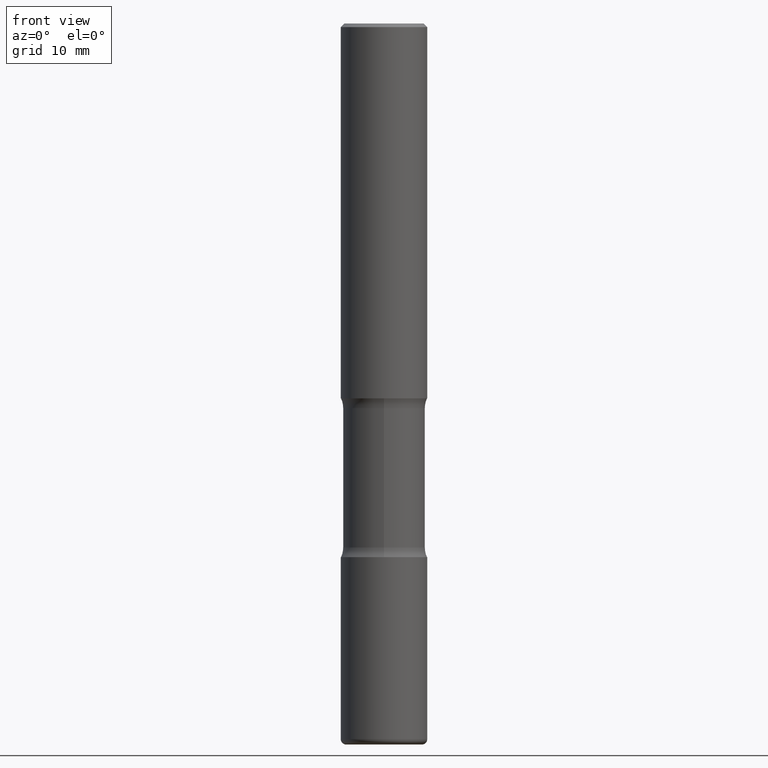
[diagram: clean part render]
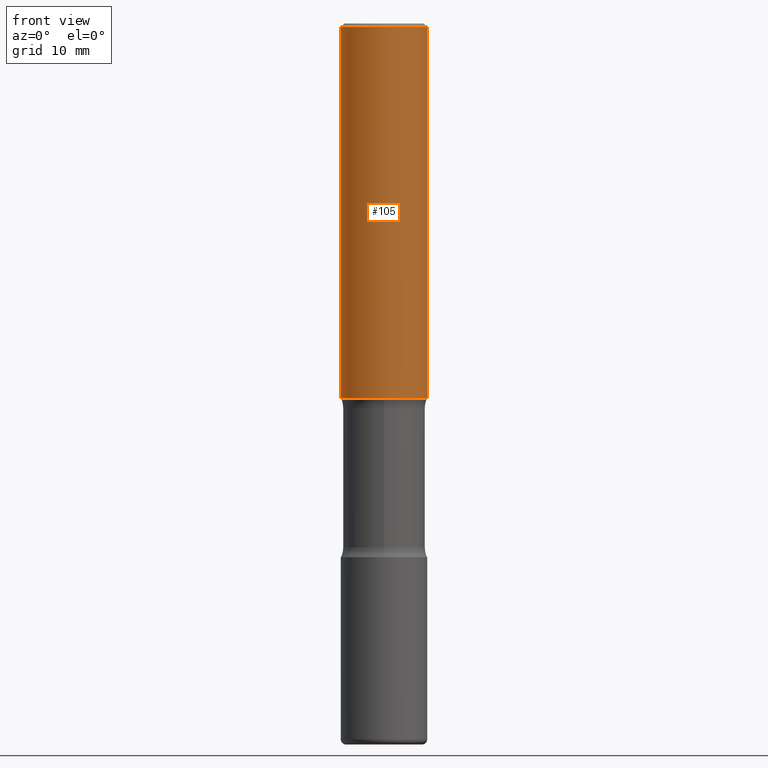
[diagram: same view with one face highlighted and labeled with its STEP entity id]
A machine part, front view. The second image highlights one B-rep face of the part: STEP entity #105.
In plain terms, the highlighted cylindrical surface (partial cylindrical patch) has radius 5.9995 mm, axis along (-0, 0, 1).
Its self-contained STEP definition (entity closure, byte-faithful):
#6 = CARTESIAN_POINT ( 'NONE',  ( -0.2361999999999999933, 1.678301941865356591E-15, -1.161852468318208757E-29 ) ) ;
#10 = VERTEX_POINT ( 'NONE', #262 ) ;
#13 = CARTESIAN_POINT ( 'NONE',  ( 0.2361999999999999933, -1.649375784469496131E-15, 1.151752954443000088E-29 ) ) ;
#14 = FACE_OUTER_BOUND ( 'NONE', #55, .T. ) ;
#32 = DIRECTION ( 'NONE',  ( 1.000000000000000000, -6.982962677686267499E-15, 0.000000000000000000 ) ) ;
#33 = VERTEX_POINT ( 'NONE', #216 ) ;
#40 = EDGE_CURVE ( 'NONE', #170, #33, #536, .T. ) ;
#41 = VECTOR ( 'NONE', #281, 39.37007874015748143 ) ;
#55 = EDGE_LOOP ( 'NONE', ( #484, #62, #71, #237 ) ) ;
#59 = AXIS2_PLACEMENT_3D ( 'NONE', #512, #294, #32 ) ;
#62 = ORIENTED_EDGE ( 'NONE', *, *, #214, .T. ) ;
#70 = CARTESIAN_POINT ( 'NONE',  ( -0.2362000000000001598, -1.930493169962915017E-15, -2.047200000000000131 ) ) ;
#71 = ORIENTED_EDGE ( 'NONE', *, *, #227, .T. ) ;
#79 = CARTESIAN_POINT ( 'NONE',  ( 5.006363740022212241E-29, -7.147760596879688202E-15, -2.047200000000000131 ) ) ;
#88 = LINE ( 'NONE', #13, #41 ) ;
#102 = AXIS2_PLACEMENT_3D ( 'NONE', #331, #511, #505 ) ;
#105 = ADVANCED_FACE ( 'NONE', ( #14 ), #183, .T. ) ;
#121 = AXIS2_PLACEMENT_3D ( 'NONE', #79, #254, #429 ) ;
#139 = CIRCLE ( 'NONE', #59, 0.2361999999999998823 ) ;
#170 = VERTEX_POINT ( 'NONE', #70 ) ;
#176 = DIRECTION ( 'NONE',  ( -2.445468806185136877E-29, 3.491481338843145188E-15, 1.000000000000000000 ) ) ;
#183 = CYLINDRICAL_SURFACE ( 'NONE', #102, 0.2361999999999999933 ) ;
#202 = EDGE_CURVE ( 'NONE', #33, #10, #139, .T. ) ;
#214 = EDGE_CURVE ( 'NONE', #170, #496, #452, .T. ) ;
#216 = CARTESIAN_POINT ( 'NONE',  ( -0.2361999999999998823, 1.579546157692632438E-15, -0.02000000000000006981 ) ) ;
#227 = EDGE_CURVE ( 'NONE', #496, #10, #88, .T. ) ;
#237 = ORIENTED_EDGE ( 'NONE', *, *, #202, .F. ) ;
#254 = DIRECTION ( 'NONE',  ( -2.445468806185136597E-29, 3.491481338843145583E-15, 1.000000000000000000 ) ) ;
#262 = CARTESIAN_POINT ( 'NONE',  ( 0.2361999999999998823, -1.690279253850498179E-15, -0.02000000000000006981 ) ) ;
#281 = DIRECTION ( 'NONE',  ( -2.445468806185136877E-29, 3.491481338843145188E-15, 1.000000000000000000 ) ) ;
#286 = CARTESIAN_POINT ( 'NONE',  ( 0.2362000000000001321, -8.797136381349186305E-15, -2.047200000000000131 ) ) ;
#294 = DIRECTION ( 'NONE',  ( -2.445468806185136597E-29, 3.491481338843145583E-15, 1.000000000000000000 ) ) ;
#331 = CARTESIAN_POINT ( 'NONE',  ( 0.000000000000000000, 0.000000000000000000, 0.000000000000000000 ) ) ;
#429 = DIRECTION ( 'NONE',  ( 1.000000000000000000, -6.982962677686269077E-15, 0.000000000000000000 ) ) ;
#439 = VECTOR ( 'NONE', #176, 39.37007874015748143 ) ;
#452 = CIRCLE ( 'NONE', #121, 0.2362000000000001321 ) ;
#484 = ORIENTED_EDGE ( 'NONE', *, *, #40, .F. ) ;
#496 = VERTEX_POINT ( 'NONE', #286 ) ;
#505 = DIRECTION ( 'NONE',  ( 1.000000000000000000, -6.982962677686266711E-15, 4.876176775795936353E-29 ) ) ;
#511 = DIRECTION ( 'NONE',  ( -2.445468806185136597E-29, 3.491481338843145583E-15, 1.000000000000000000 ) ) ;
#512 = CARTESIAN_POINT ( 'NONE',  ( 4.890937612370289799E-31, -6.982962677686315028E-17, -0.02000000000000006981 ) ) ;
#536 = LINE ( 'NONE', #6, #439 ) ;